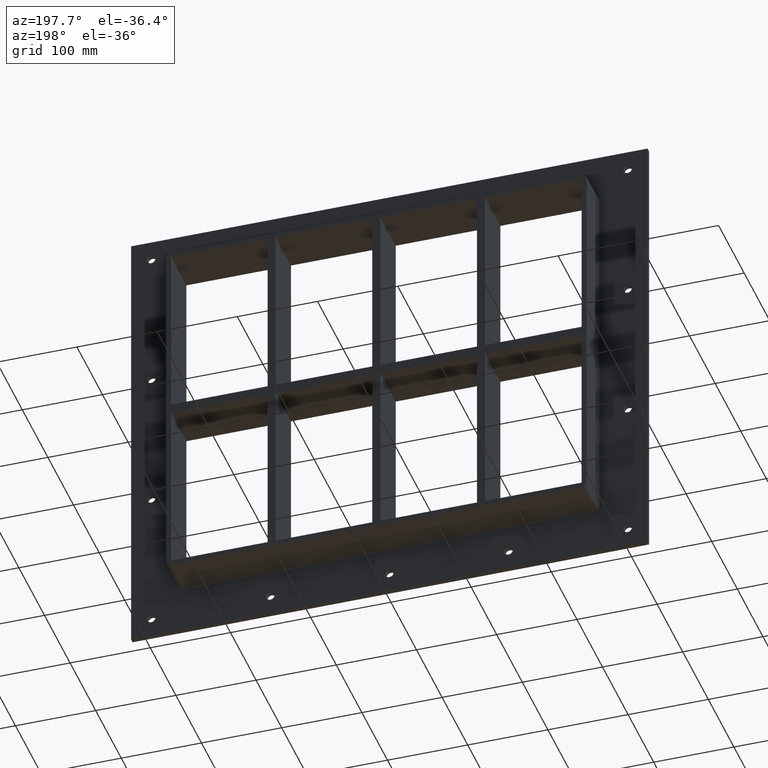
[diagram: clean part render]
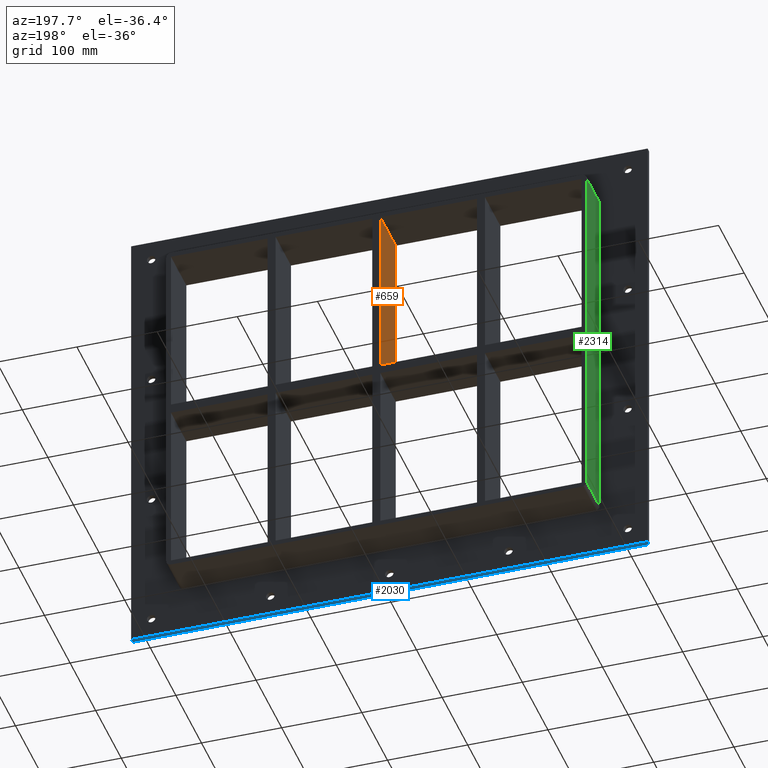
[diagram: same view with three faces highlighted in distinct colors, each labeled with its STEP entity id]
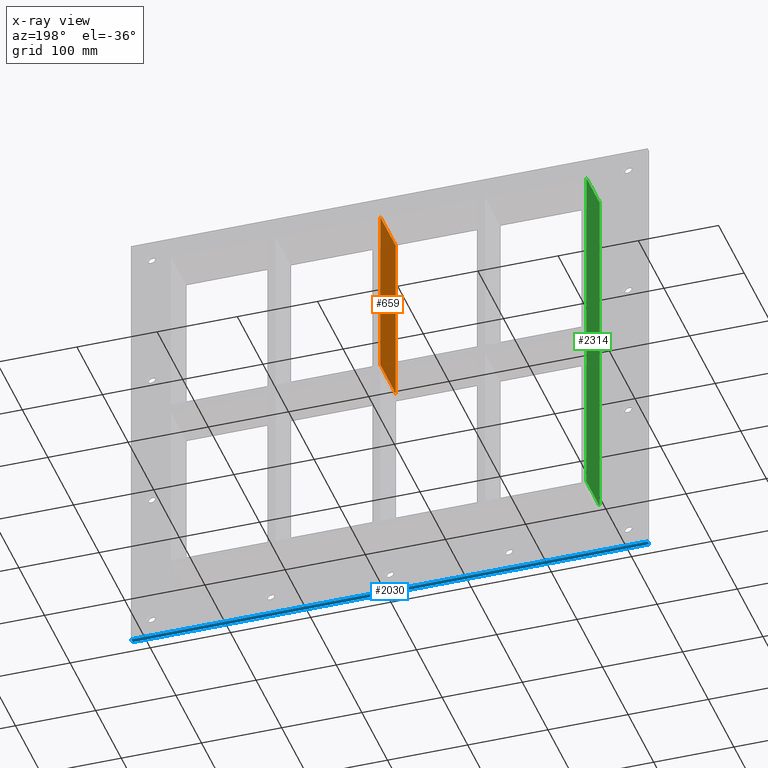
[diagram: x-ray of the same camera — body ghosted, the three highlighted faces saturated]
A machine part, auxiliary view with three faces highlighted in distinct colors.
The next image is the same camera in x-ray (body ghosted, the three faces saturated) — at least one of them is partly hidden behind the body in this view.
Their STEP definitions:

[orange] entity #659 — the highlighted planar face has unit normal (-1, 0, 0).
#620=CARTESIAN_POINT('',(-5.000000000002167,-3.0,-224.00000000000003));
#621=DIRECTION('',(-1.0,0.0,0.0));
#622=DIRECTION('',(0.0,0.0,1.0));
#623=AXIS2_PLACEMENT_3D('',#620,#621,#622);
#624=PLANE('',#623);
#625=CARTESIAN_POINT('',(-5.000000000002176,-3.0,5.999999999999943));
#626=VERTEX_POINT('',#625);
#627=CARTESIAN_POINT('',(-5.000000000002176,57.0,5.999999999999943));
#628=VERTEX_POINT('',#627);
#629=CARTESIAN_POINT('',(-5.000000000002172,-3.0,5.999999999999943));
#630=DIRECTION('',(0.0,1.0,0.0));
#631=VECTOR('',#630,60.0);
#632=LINE('',#629,#631);
#633=EDGE_CURVE('',#626,#628,#632,.T.);
#634=ORIENTED_EDGE('',*,*,#633,.F.);
#635=CARTESIAN_POINT('',(-5.000000000002185,-3.0,224.00000000000003));
#636=VERTEX_POINT('',#635);
#637=CARTESIAN_POINT('',(-5.000000000002176,-3.0,5.999999999999943));
#638=DIRECTION('',(0.0,0.0,1.0));
#639=VECTOR('',#638,218.00000000000009);
#640=LINE('',#637,#639);
#641=EDGE_CURVE('',#626,#636,#640,.T.);
#642=ORIENTED_EDGE('',*,*,#641,.T.);
#643=CARTESIAN_POINT('',(-5.000000000002185,57.0,224.00000000000003));
#644=VERTEX_POINT('',#643);
#645=CARTESIAN_POINT('',(-5.000000000002194,57.000000000000007,224.00000000000003));
#646=DIRECTION('',(0.0,-1.0,0.0));
#647=VECTOR('',#646,60.000000000000007);
#648=LINE('',#645,#647);
#649=EDGE_CURVE('',#644,#636,#648,.T.);
#650=ORIENTED_EDGE('',*,*,#649,.F.);
#651=CARTESIAN_POINT('',(-5.000000000002176,57.0,5.999999999999943));
#652=DIRECTION('',(0.0,0.0,1.0));
#653=VECTOR('',#652,218.00000000000009);
#654=LINE('',#651,#653);
#655=EDGE_CURVE('',#628,#644,#654,.T.);
#656=ORIENTED_EDGE('',*,*,#655,.F.);
#657=EDGE_LOOP('',(#634,#642,#650,#656));
#658=FACE_OUTER_BOUND('',#657,.T.);
#659=ADVANCED_FACE('',(#658),#624,.T.);

[blue] entity #2030 — the highlighted planar face has unit normal (0, 0, -1).
#1703=CARTESIAN_POINT('',(322.00000000000011,6.000000000000001,-290.0));
#1704=VERTEX_POINT('',#1703);
#1711=CARTESIAN_POINT('',(-322.00000000000011,6.000000000000001,-290.0));
#1712=VERTEX_POINT('',#1711);
#1713=CARTESIAN_POINT('',(322.00000000000011,6.000000000000001,-290.0));
#1714=DIRECTION('',(-1.0,0.0,0.0));
#1715=VECTOR('',#1714,644.00000000000023);
#1716=LINE('',#1713,#1715);
#1717=EDGE_CURVE('',#1704,#1712,#1716,.T.);
#1855=CARTESIAN_POINT('',(-322.00000000000011,0.0,-290.0));
#1856=VERTEX_POINT('',#1855);
#1863=CARTESIAN_POINT('',(322.00000000000011,0.0,-290.0));
#1864=VERTEX_POINT('',#1863);
#1865=CARTESIAN_POINT('',(322.00000000000011,0.0,-290.0));
#1866=DIRECTION('',(-1.0,0.0,0.0));
#1867=VECTOR('',#1866,644.00000000000023);
#1868=LINE('',#1865,#1867);
#1869=EDGE_CURVE('',#1864,#1856,#1868,.T.);
#2005=CARTESIAN_POINT('',(-322.00000000000011,0.0,-290.0));
#2006=DIRECTION('',(0.0,1.0,0.0));
#2007=VECTOR('',#2006,6.000000000000001);
#2008=LINE('',#2005,#2007);
#2009=EDGE_CURVE('',#1856,#1712,#2008,.T.);
#2014=CARTESIAN_POINT('',(322.00000000000011,0.0,-290.0));
#2015=DIRECTION('',(0.0,0.0,-1.0));
#2016=DIRECTION('',(-1.0,0.0,0.0));
#2017=AXIS2_PLACEMENT_3D('',#2014,#2015,#2016);
#2018=PLANE('',#2017);
#2019=ORIENTED_EDGE('',*,*,#1869,.T.);
#2020=ORIENTED_EDGE('',*,*,#2009,.T.);
#2021=ORIENTED_EDGE('',*,*,#1717,.F.);
#2022=CARTESIAN_POINT('',(322.00000000000011,0.0,-290.0));
#2023=DIRECTION('',(0.0,1.0,0.0));
#2024=VECTOR('',#2023,6.000000000000001);
#2025=LINE('',#2022,#2024);
#2026=EDGE_CURVE('',#1864,#1704,#2025,.T.);
#2027=ORIENTED_EDGE('',*,*,#2026,.F.);
#2028=EDGE_LOOP('',(#2019,#2020,#2021,#2027));
#2029=FACE_OUTER_BOUND('',#2028,.T.);
#2030=ADVANCED_FACE('',(#2029),#2018,.T.);

[green] entity #2314 — the highlighted planar face has unit normal (-1, 0, 0).
#1193=CARTESIAN_POINT('',(-262.0,57.0,-224.00000000000003));
#1194=VERTEX_POINT('',#1193);
#1202=CARTESIAN_POINT('',(-262.0,57.0,224.00000000000003));
#1203=VERTEX_POINT('',#1202);
#1204=CARTESIAN_POINT('',(-262.0,57.0,-224.0));
#1205=DIRECTION('',(0.0,0.0,1.0));
#1206=VECTOR('',#1205,448.0);
#1207=LINE('',#1204,#1206);
#1208=EDGE_CURVE('',#1194,#1203,#1207,.T.);
#1771=CARTESIAN_POINT('',(-262.0,6.000000000000001,-224.00000000000003));
#1772=VERTEX_POINT('',#1771);
#1822=CARTESIAN_POINT('',(-262.0,6.000000000000001,224.00000000000003));
#1823=VERTEX_POINT('',#1822);
#1831=CARTESIAN_POINT('',(-262.0,6.000000000000001,-224.0));
#1832=DIRECTION('',(0.0,0.0,1.0));
#1833=VECTOR('',#1832,448.00000000000006);
#1834=LINE('',#1831,#1833);
#1835=EDGE_CURVE('',#1772,#1823,#1834,.T.);
#2287=CARTESIAN_POINT('',(-262.0,6.000000000000001,-224.00000000000003));
#2288=DIRECTION('',(0.0,1.0,0.0));
#2289=VECTOR('',#2288,51.0);
#2290=LINE('',#2287,#2289);
#2291=EDGE_CURVE('',#1772,#1194,#2290,.T.);
#2298=CARTESIAN_POINT('',(-262.0,0.0,-230.00000000000003));
#2299=DIRECTION('',(-1.0,0.0,0.0));
#2300=DIRECTION('',(0.0,0.0,1.0));
#2301=AXIS2_PLACEMENT_3D('',#2298,#2299,#2300);
#2302=PLANE('',#2301);
#2303=ORIENTED_EDGE('',*,*,#1835,.T.);
#2304=CARTESIAN_POINT('',(-262.0,57.0,224.00000000000003));
#2305=DIRECTION('',(0.0,-1.0,0.0));
#2306=VECTOR('',#2305,51.0);
#2307=LINE('',#2304,#2306);
#2308=EDGE_CURVE('',#1203,#1823,#2307,.T.);
#2309=ORIENTED_EDGE('',*,*,#2308,.F.);
#2310=ORIENTED_EDGE('',*,*,#1208,.F.);
#2311=ORIENTED_EDGE('',*,*,#2291,.F.);
#2312=EDGE_LOOP('',(#2303,#2309,#2310,#2311));
#2313=FACE_OUTER_BOUND('',#2312,.T.);
#2314=ADVANCED_FACE('',(#2313),#2302,.T.);